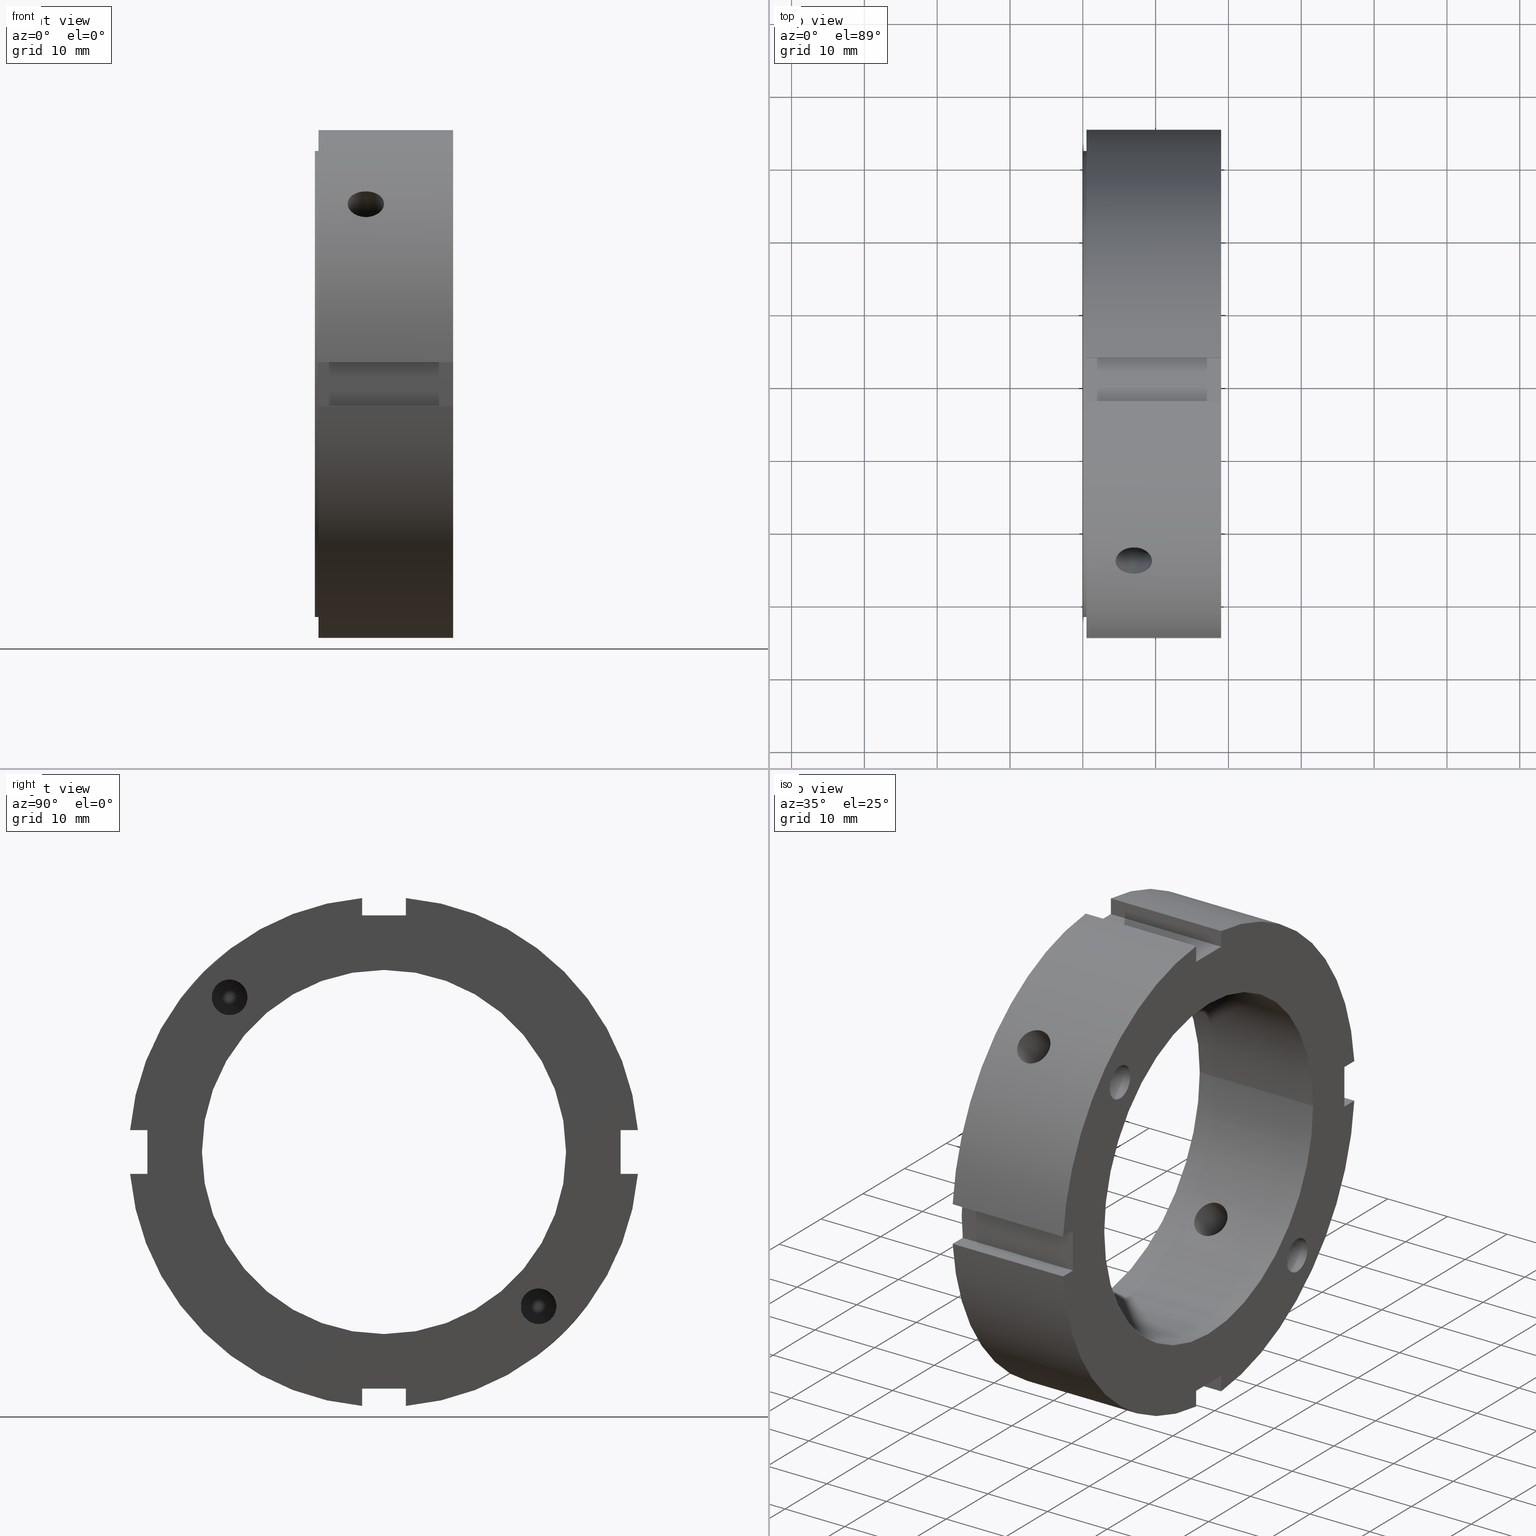
[diagram: canonical four-view strip — front | top / right | iso, engineering-drawing reading convention]
A machine part, canonical four-view strip (front | top / right | iso — engineering-drawing reading convention). The complete STEP part file that produces these views, byte-faithful:
ISO-10303-21;
HEADER;
/****************************************************************
 * Generated by software with PDElib inside                    *
 * PDElib Version v51a, created Wed 11/30/2011                  *
 * ITI Transcendata (http://www.transcendata.com/)              *
 ****************************************************************/
FILE_DESCRIPTION((''),'2;1');
FILE_NAME('C:\\Users\\sugidesign\\Documents\\Fukuda\\3Ddata\\ZMVtype\\FKD ZMV50.stp','2014-02-22T15:43:33',('sugidesign'),(''),'Autodesk Inventor LT ','Autodesk Inventor LT ','');
FILE_SCHEMA(('CONFIG_CONTROL_DESIGN'));
ENDSEC;
DATA;
#5=APPLICATION_CONTEXT('configuration controlled 3D designs of mechanical parts and assemblies');
#6=APPLICATION_PROTOCOL_DEFINITION('International Standard','ap203_configuration_controlled_3d_design_of_mechanical_parts_and_assemblies_mim_lf',2004,#5);
#7=PRODUCT_CONTEXT('',#5,'mechanical');
#8=PRODUCT('FKD ZMV50','FKD ZMV50',$,(#7));
#9=PRODUCT_RELATED_PRODUCT_CATEGORY('part',$,(#8));
#10=PRODUCT_DEFINITION_FORMATION('',$,#8);
#11=PRODUCT_DEFINITION_CONTEXT('part definition',#5,'design');
#12=PRODUCT_DEFINITION('',$,#10,#11);
#18=(NAMED_UNIT(*)PLANE_ANGLE_UNIT()SI_UNIT($,.RADIAN.));
#19=DIMENSIONAL_EXPONENTS(0.0,0.0,0.0,0.0,0.0,0.0,0.0);
#20=PLANE_ANGLE_MEASURE_WITH_UNIT(PLANE_ANGLE_MEASURE(0.0174532925),#18);
#24=(CONVERSION_BASED_UNIT('DEGREE',#20)NAMED_UNIT(#19)PLANE_ANGLE_UNIT());
#28=(NAMED_UNIT(*)SI_UNIT($,.STERADIAN.)SOLID_ANGLE_UNIT());
#32=(LENGTH_UNIT()NAMED_UNIT(*)SI_UNIT(.MILLI.,.METRE.));
#34=UNCERTAINTY_MEASURE_WITH_UNIT(LENGTH_MEASURE(0.01),#32,'DISTANCE_ACCURACY_VALUE','');
#36=(GEOMETRIC_REPRESENTATION_CONTEXT(3)GLOBAL_UNCERTAINTY_ASSIGNED_CONTEXT((#34))GLOBAL_UNIT_ASSIGNED_CONTEXT((#24,#28,#32))REPRESENTATION_CONTEXT('None','None'));
#37=AXIS2_PLACEMENT_3D('',#38,#39,#40);
#38=CARTESIAN_POINT('',(0.0,0.0,0.0));
#39=DIRECTION('',(0.0,0.0,1.0));
#40=DIRECTION('',(1.0,0.0,0.0));
#41=SHAPE_REPRESENTATION('',(#37),#36);
#42=PRODUCT_DEFINITION_SHAPE('','',#12);
#43=SHAPE_DEFINITION_REPRESENTATION(#42,#41);
#49=(NAMED_UNIT(*)PLANE_ANGLE_UNIT()SI_UNIT($,.RADIAN.));
#50=DIMENSIONAL_EXPONENTS(0.0,0.0,0.0,0.0,0.0,0.0,0.0);
#51=PLANE_ANGLE_MEASURE_WITH_UNIT(PLANE_ANGLE_MEASURE(0.0174532925),#49);
#55=(CONVERSION_BASED_UNIT('DEGREE',#51)NAMED_UNIT(#50)PLANE_ANGLE_UNIT());
#59=(NAMED_UNIT(*)SI_UNIT($,.STERADIAN.)SOLID_ANGLE_UNIT());
#63=(LENGTH_UNIT()NAMED_UNIT(*)SI_UNIT(.MILLI.,.METRE.));
#65=UNCERTAINTY_MEASURE_WITH_UNIT(LENGTH_MEASURE(0.000001),#63,'DISTANCE_ACCURACY_VALUE','');
#67=(GEOMETRIC_REPRESENTATION_CONTEXT(3)GLOBAL_UNCERTAINTY_ASSIGNED_CONTEXT((#65))GLOBAL_UNIT_ASSIGNED_CONTEXT((#55,#59,#63))REPRESENTATION_CONTEXT('','3D'));
#68=CARTESIAN_POINT('',(12.999999999999989,-21.213203435596419,21.213203435596434));
#69=DIRECTION('',(-1.0,0.0,0.0));
#70=DIRECTION('',(0.0,-1.0,0.0));
#71=AXIS2_PLACEMENT_3D('',#68,#69,#70);
#72=CYLINDRICAL_SURFACE('',#71,2.4585);
#73=CARTESIAN_POINT('',(18.999999999999989,-23.67170343559642,21.213203435596434));
#74=VERTEX_POINT('',#73);
#75=CARTESIAN_POINT('',(18.999999999999989,-21.213203435596419,21.213203435596434));
#76=DIRECTION('',(-1.0,0.0,0.0));
#77=DIRECTION('',(0.0,-1.0,0.0));
#78=AXIS2_PLACEMENT_3D('',#75,#76,#77);
#79=CIRCLE('',#78,2.4585);
#80=EDGE_CURVE('',#74,#74,#79,.T.);
#81=ORIENTED_EDGE('',*,*,#80,.F.);
#82=EDGE_LOOP('',(#81));
#83=FACE_OUTER_BOUND('',#82,.T.);
#84=CARTESIAN_POINT('',(7.45362732501464,-19.474781414049289,22.951625457143557));
#85=VERTEX_POINT('',#84);
#86=CARTESIAN_POINT('',(7.453627325014676,-19.474781414049289,22.951625457143557));
#87=CARTESIAN_POINT('',(7.453627325014675,-19.548281791984685,23.025125835078953));
#88=CARTESIAN_POINT('',(7.485845144440702,-19.610837036625924,23.079431589738082));
#89=CARTESIAN_POINT('',(7.564508256890265,-19.733180553379079,23.177871432418122));
#90=CARTESIAN_POINT('',(7.612937817032464,-19.792489264129308,23.221002769903851));
#91=CARTESIAN_POINT('',(7.772228880000029,-19.977509045399998,23.343747503521854));
#92=CARTESIAN_POINT('',(7.895505545516908,-20.107519828547499,23.414545669080823));
#93=CARTESIAN_POINT('',(8.283828024816529,-20.537152457931107,23.597330917980258));
#94=CARTESIAN_POINT('',(8.561851096446011,-20.870054196267226,23.671703435596431));
#95=CARTESIAN_POINT('',(8.987347846502065,-21.491946694246057,23.671703435596431));
#96=CARTESIAN_POINT('',(9.170926118717715,-21.807864604421788,23.621144407465469));
#97=CARTESIAN_POINT('',(9.363473477026185,-22.265711746251849,23.441059725573265));
#98=CARTESIAN_POINT('',(9.414345366287378,-22.415921810929436,23.364088263739372));
#99=CARTESIAN_POINT('',(9.482622830029023,-22.699179580383095,23.179090495411124));
#100=CARTESIAN_POINT('',(9.499999999999989,-22.832215401636834,23.07103551265028));
#101=CARTESIAN_POINT('',(9.499999999999991,-23.071035512650269,22.832215401636844));
#102=CARTESIAN_POINT('',(9.482622830029024,-23.179090495411106,22.699179580383113));
#103=CARTESIAN_POINT('',(9.414345366287385,-23.364088263739355,22.415921810929458));
#104=CARTESIAN_POINT('',(9.363473477026194,-23.441059725573254,22.265711746251867));
#105=CARTESIAN_POINT('',(9.170926118717732,-23.621144407465451,21.807864604421816));
#106=CARTESIAN_POINT('',(8.987347846502088,-23.671703435596424,21.491946694246092));
#107=CARTESIAN_POINT('',(8.561851096446054,-23.671703435596424,20.870054196267272));
#108=CARTESIAN_POINT('',(8.283828024816582,-23.597330917980255,20.537152457931146));
#109=CARTESIAN_POINT('',(7.895505545516977,-23.414545669080816,20.107519828547535));
#110=CARTESIAN_POINT('',(7.772228880000103,-23.343747503521854,19.977509045400033));
#111=CARTESIAN_POINT('',(7.612937817032548,-23.221002769903851,19.79248926412934));
#112=CARTESIAN_POINT('',(7.564508256890381,-23.177871432418115,19.7331805533791));
#113=CARTESIAN_POINT('',(7.485845144440827,-23.079431589738071,19.610837036625938));
#114=CARTESIAN_POINT('',(7.453627325014779,-23.025125835078942,19.548281791984707));
#115=CARTESIAN_POINT('',(7.453627325014774,-22.87812507920815,19.401281036113915));
#116=CARTESIAN_POINT('',(7.485845144440821,-22.815569834566926,19.346975281454796));
#117=CARTESIAN_POINT('',(7.564508256890364,-22.693226317813767,19.248535438774756));
#118=CARTESIAN_POINT('',(7.612937817032536,-22.633917607063534,19.20540410128902));
#119=CARTESIAN_POINT('',(7.772228880000084,-22.448897825792841,19.082659367671017));
#120=CARTESIAN_POINT('',(7.895505545516956,-22.318887042645329,19.011861202112041));
#121=CARTESIAN_POINT('',(8.283828024816556,-21.889254413261725,18.829075953212605));
#122=CARTESIAN_POINT('',(8.561851096446034,-21.556352674925613,18.754703435596436));
#123=CARTESIAN_POINT('',(8.987347846502074,-20.934460176946793,18.754703435596433));
#124=CARTESIAN_POINT('',(9.170926118717723,-20.618542266771058,18.805262463727395));
#125=CARTESIAN_POINT('',(9.36347347702619,-20.160695124941,18.985347145619595));
#126=CARTESIAN_POINT('',(9.414345366287385,-20.010485060263399,19.062318607453488));
#127=CARTESIAN_POINT('',(9.482622830029024,-19.72722729080974,19.247316375781736));
#128=CARTESIAN_POINT('',(9.499999999999991,-19.594191469556012,19.355371358542584));
#129=CARTESIAN_POINT('',(9.499999999999991,-19.355371358542577,19.594191469556019));
#130=CARTESIAN_POINT('',(9.482622830029024,-19.247316375781725,19.727227290809751));
#131=CARTESIAN_POINT('',(9.41434536628738,-19.062318607453477,20.010485060263413));
#132=CARTESIAN_POINT('',(9.363473477026185,-18.985347145619581,20.160695124941007));
#133=CARTESIAN_POINT('',(9.170926118717715,-18.805262463727384,20.618542266771062));
#134=CARTESIAN_POINT('',(8.987347846502065,-18.754703435596415,20.934460176946793));
#135=CARTESIAN_POINT('',(8.561851096446011,-18.754703435596415,21.556352674925616));
#136=CARTESIAN_POINT('',(8.283828024816526,-18.829075953212598,21.889254413261746));
#137=CARTESIAN_POINT('',(7.895505545516905,-19.011861202112033,22.318887042645351));
#138=CARTESIAN_POINT('',(7.772228880000029,-19.082659367671006,22.448897825792855));
#139=CARTESIAN_POINT('',(7.612937817032465,-19.205404101289002,22.633917607063545));
#140=CARTESIAN_POINT('',(7.564508256890285,-19.248535438774741,22.693226317813789));
#141=CARTESIAN_POINT('',(7.485845144440727,-19.346975281454782,22.815569834566944));
#142=CARTESIAN_POINT('',(7.453627325014684,-19.401281036113893,22.878125079208161));
#143=CARTESIAN_POINT('',(7.453627325014684,-19.474781414049289,22.951625457143557));
#144=B_SPLINE_CURVE_WITH_KNOTS('',3,(#86,#87,#88,#89,#90,#91,#92,#93,#94,#95,#96,#97,#98,#99,#100,#101,#102,#103,#104,#105,#106,#107,#108,#109,#110,#111,#112,#113,#114,#115,#116,#117,#118,#119,#120,#121,#122,#123,#124,#125,#126,#127,#128,#129,#130,#131,#132,#133,#134,#135,#136,#137,#138,#139,#140,#141,#142,#143),.UNSPECIFIED.,.T.,.U.,(4,2,2,2,2,2,2,2,2,2,2,2,2,2,2,2,2,2,2,2,2,2,2,2,2,2,2,2,4),(0.0,0.031183569394737,0.062367138789473,0.124734277578947,0.249468555157893,0.350791347146689,0.401452743141086,0.452114139135484,0.502775535129881,0.553436931124277,0.654759723113071,0.779494000692013,0.841861139481485,0.87304470887622,0.904228278270956,0.935411847665691,0.966595417060427,1.028962555849898,1.153696833428841,1.255019625417636,1.305681021412034,1.356342417406431,1.407003813400829,1.457665209395226,1.558988001384021,1.683722278962967,1.74608941775244,1.777272987147177,1.808456556541913),.UNSPECIFIED.);
#145=EDGE_CURVE('',#85,#85,#144,.T.);
#146=ORIENTED_EDGE('',*,*,#145,.F.);
#147=EDGE_LOOP('',(#146));
#148=FACE_BOUND('',#147,.T.);
#149=ADVANCED_FACE('',(#83,#148),#72,.F.);
#150=CARTESIAN_POINT('',(6.999999999999991,-71.024643610510282,71.02464361051031));
#151=DIRECTION('',(0.0,-0.707106781186547,0.707106781186548));
#152=DIRECTION('',(1.0,0.0,0.0));
#153=AXIS2_PLACEMENT_3D('',#150,#151,#152);
#154=CYLINDRICAL_SURFACE('',#153,2.5);
#155=CARTESIAN_POINT('',(6.999999999999991,-26.453289025630742,22.917755119698));
#156=VERTEX_POINT('',#155);
#157=CARTESIAN_POINT('',(6.999999999999992,-26.453289025630738,22.917755119698011));
#158=CARTESIAN_POINT('',(6.685979550826577,-26.453289025630738,22.917755119698011));
#159=CARTESIAN_POINT('',(6.351101312387696,-26.412201968584572,22.965450920460029));
#160=CARTESIAN_POINT('',(5.735184683418414,-26.243703939774605,23.157814065553552));
#161=CARTESIAN_POINT('',(5.454137198955172,-26.116124570931589,23.302304709737239));
#162=CARTESIAN_POINT('',(5.010329090823675,-25.818175393671751,23.631994978088102));
#163=CARTESIAN_POINT('',(4.817946388959292,-25.627890966716521,23.839171838510502));
#164=CARTESIAN_POINT('',(4.562778887486544,-25.204282946558848,24.28660187215856));
#165=CARTESIAN_POINT('',(4.499999999999991,-24.97078313473423,24.526691548324095));
#166=CARTESIAN_POINT('',(4.499999999999991,-24.526691548324095,24.970783134734233));
#167=CARTESIAN_POINT('',(4.562778887486539,-24.28660187215857,25.204282946558855));
#168=CARTESIAN_POINT('',(4.817946388959284,-23.839171838510502,25.627890966716524));
#169=CARTESIAN_POINT('',(5.010329090823675,-23.631994978088095,25.818175393671751));
#170=CARTESIAN_POINT('',(5.454137198955172,-23.302304709737236,26.116124570931593));
#171=CARTESIAN_POINT('',(5.735184683418416,-23.157814065553538,26.243703939774612));
#172=CARTESIAN_POINT('',(6.351101312387696,-22.965450920460022,26.412201968584583));
#173=CARTESIAN_POINT('',(6.685979550826576,-22.917755119698008,26.453289025630742));
#174=CARTESIAN_POINT('',(7.314020449173405,-22.917755119698008,26.453289025630742));
#175=CARTESIAN_POINT('',(7.648898687612285,-22.965450920460022,26.412201968584583));
#176=CARTESIAN_POINT('',(8.264815316581567,-23.157814065553538,26.243703939774612));
#177=CARTESIAN_POINT('',(8.545862801044811,-23.302304709737236,26.116124570931593));
#178=CARTESIAN_POINT('',(8.989670909176306,-23.631994978088095,25.818175393671751));
#179=CARTESIAN_POINT('',(9.182053611040693,-23.839171838510499,25.627890966716535));
#180=CARTESIAN_POINT('',(9.43722111251344,-24.28660187215856,25.204282946558859));
#181=CARTESIAN_POINT('',(9.499999999999991,-24.526691548324095,24.970783134734233));
#182=CARTESIAN_POINT('',(9.499999999999991,-24.970783134734226,24.526691548324095));
#183=CARTESIAN_POINT('',(9.437221112513438,-25.204282946558848,24.28660187215856));
#184=CARTESIAN_POINT('',(9.18205361104069,-25.627890966716521,23.839171838510502));
#185=CARTESIAN_POINT('',(8.989670909176306,-25.818175393671744,23.631994978088102));
#186=CARTESIAN_POINT('',(8.545862801044811,-26.116124570931589,23.302304709737239));
#187=CARTESIAN_POINT('',(8.264815316581567,-26.243703939774605,23.157814065553545));
#188=CARTESIAN_POINT('',(7.648898687612285,-26.412201968584572,22.965450920460029));
#189=CARTESIAN_POINT('',(7.314020449173406,-26.453289025630738,22.917755119698011));
#190=CARTESIAN_POINT('',(6.999999999999991,-26.453289025630738,22.917755119698011));
#191=B_SPLINE_CURVE_WITH_KNOTS('',3,(#157,#158,#159,#160,#161,#162,#163,#164,#165,#166,#167,#168,#169,#170,#171,#172,#173,#174,#175,#176,#177,#178,#179,#180,#181,#182,#183,#184,#185,#186,#187,#188,#189,#190),.UNSPECIFIED.,.T.,.U.,(4,2,2,2,2,2,2,2,2,2,2,2,2,2,2,2,4),(0.0,0.094206134752024,0.188412269504049,0.282618321169598,0.376824372835147,0.471030424500697,0.565236476166246,0.65944261091827,0.753648745670295,0.847854880422319,0.942061015174344,1.036267066839893,1.130473118505442,1.224679170170991,1.318885221836541,1.413091356588565,1.507297491340589),.UNSPECIFIED.);
#192=EDGE_CURVE('',#156,#156,#191,.T.);
#193=ORIENTED_EDGE('',*,*,#192,.F.);
#194=EDGE_LOOP('',(#193));
#195=FACE_OUTER_BOUND('',#194,.T.);
#196=ORIENTED_EDGE('',*,*,#145,.T.);
#197=EDGE_LOOP('',(#196));
#198=FACE_BOUND('',#197,.T.);
#199=CARTESIAN_POINT('',(6.999999999999991,-19.356826052304228,15.821292146371491));
#200=VERTEX_POINT('',#199);
#201=CARTESIAN_POINT('',(6.999999999999991,-19.356826052304225,15.821292146371498));
#202=CARTESIAN_POINT('',(7.314131518358572,-19.356826052304225,15.821292146371498));
#203=CARTESIAN_POINT('',(7.649057145595561,-19.317045281653897,15.870355491965265));
#204=CARTESIAN_POINT('',(8.264942876141339,-19.153334578612142,16.06755103627852));
#205=CARTESIAN_POINT('',(8.545920952312564,-19.029168650815485,16.215431027932663));
#206=CARTESIAN_POINT('',(8.989612198510145,-18.737671794442385,16.551408349438397));
#207=CARTESIAN_POINT('',(9.181978302160339,-18.550821169181116,16.761921198428496));
#208=CARTESIAN_POINT('',(9.437177996889441,-18.132006488581933,17.214102039008431));
#209=CARTESIAN_POINT('',(9.499999999999991,-17.899793300421422,17.455545758905956));
#210=CARTESIAN_POINT('',(9.499999999999991,-17.455545758905949,17.899793300421422));
#211=CARTESIAN_POINT('',(9.437177996889442,-17.214102039008424,18.132006488581936));
#212=CARTESIAN_POINT('',(9.181978302160342,-16.761921198428492,18.550821169181116));
#213=CARTESIAN_POINT('',(8.989612198510145,-16.551408349438397,18.737671794442388));
#214=CARTESIAN_POINT('',(8.545920952312567,-16.215431027932659,19.029168650815489));
#215=CARTESIAN_POINT('',(8.26494287614134,-16.067551036278513,19.153334578612149));
#216=CARTESIAN_POINT('',(7.649057145595563,-15.870355491965253,19.317045281653908));
#217=CARTESIAN_POINT('',(7.314131518358574,-15.821292146371492,19.356826052304228));
#218=CARTESIAN_POINT('',(6.685868481641409,-15.821292146371492,19.356826052304228));
#219=CARTESIAN_POINT('',(6.350942854404417,-15.870355491965253,19.317045281653908));
#220=CARTESIAN_POINT('',(5.73505712385864,-16.067551036278513,19.153334578612149));
#221=CARTESIAN_POINT('',(5.454079047687415,-16.215431027932659,19.029168650815489));
#222=CARTESIAN_POINT('',(5.010387801489836,-16.551408349438397,18.737671794442388));
#223=CARTESIAN_POINT('',(4.818021697839638,-16.761921198428492,18.55082116918112));
#224=CARTESIAN_POINT('',(4.562822003110538,-17.214102039008424,18.132006488581936));
#225=CARTESIAN_POINT('',(4.499999999999989,-17.455545758905949,17.899793300421422));
#226=CARTESIAN_POINT('',(4.499999999999992,-17.899793300421422,17.455545758905956));
#227=CARTESIAN_POINT('',(4.562822003110539,-18.132006488581933,17.214102039008431));
#228=CARTESIAN_POINT('',(4.818021697839641,-18.550821169181116,16.761921198428499));
#229=CARTESIAN_POINT('',(5.010387801489835,-18.737671794442385,16.551408349438397));
#230=CARTESIAN_POINT('',(5.454079047687416,-19.029168650815485,16.215431027932663));
#231=CARTESIAN_POINT('',(5.73505712385864,-19.153334578612142,16.067551036278516));
#232=CARTESIAN_POINT('',(6.350942854404419,-19.3170452816539,15.87035549196526));
#233=CARTESIAN_POINT('',(6.68586848164141,-19.356826052304225,15.821292146371498));
#234=CARTESIAN_POINT('',(6.999999999999991,-19.356826052304225,15.821292146371498));
#235=B_SPLINE_CURVE_WITH_KNOTS('',3,(#201,#202,#203,#204,#205,#206,#207,#208,#209,#210,#211,#212,#213,#214,#215,#216,#217,#218,#219,#220,#221,#222,#223,#224,#225,#226,#227,#228,#229,#230,#231,#232,#233,#234),.UNSPECIFIED.,.T.,.U.,(4,2,2,2,2,2,2,2,2,2,2,2,2,2,2,2,4),(0.0,0.094239455507574,0.188478911015149,0.282718045754461,0.376957180493773,0.471196315233085,0.565435449972397,0.659674905479972,0.753914360987546,0.848153816495121,0.942393272002695,1.036632406742007,1.13087154148132,1.225110676220632,1.319349810959944,1.413589266467518,1.507828721975093),.UNSPECIFIED.);
#236=EDGE_CURVE('',#200,#200,#235,.T.);
#237=ORIENTED_EDGE('',*,*,#236,.F.);
#238=EDGE_LOOP('',(#237));
#239=FACE_BOUND('',#238,.T.);
#240=ADVANCED_FACE('',(#195,#198,#239),#154,.F.);
#241=CARTESIAN_POINT('',(12.999999999999989,21.213203435596427,-21.213203435596423));
#242=DIRECTION('',(1.0,0.0,0.0));
#243=DIRECTION('',(0.0,0.0,-1.0));
#244=AXIS2_PLACEMENT_3D('',#241,#242,#243);
#245=CYLINDRICAL_SURFACE('',#244,2.4585);
#246=CARTESIAN_POINT('',(7.45362732501464,22.951625457143553,-19.474781414049293));
#247=VERTEX_POINT('',#246);
#248=CARTESIAN_POINT('',(7.45362732501464,22.951625457143553,-19.474781414049293));
#249=CARTESIAN_POINT('',(7.453627325014641,22.878125079208157,-19.401281036113897));
#250=CARTESIAN_POINT('',(7.485845144440727,22.81556983456694,-19.346975281454785));
#251=CARTESIAN_POINT('',(7.564508256890285,22.693226317813785,-19.248535438774745));
#252=CARTESIAN_POINT('',(7.612937817032465,22.633917607063538,-19.205404101289005));
#253=CARTESIAN_POINT('',(7.772228880000029,22.448897825792852,-19.08265936767101));
#254=CARTESIAN_POINT('',(7.895505545516905,22.318887042645347,-19.011861202112037));
#255=CARTESIAN_POINT('',(8.283828024816526,21.889254413261739,-18.829075953212602));
#256=CARTESIAN_POINT('',(8.561851096446011,21.556352674925613,-18.754703435596419));
#257=CARTESIAN_POINT('',(8.987347846502065,20.934460176946786,-18.754703435596419));
#258=CARTESIAN_POINT('',(9.170926118717715,20.618542266771058,-18.805262463727388));
#259=CARTESIAN_POINT('',(9.363473477026185,20.160695124941,-18.985347145619585));
#260=CARTESIAN_POINT('',(9.41434536628738,20.010485060263402,-19.062318607453481));
#261=CARTESIAN_POINT('',(9.482622830029023,19.727227290809747,-19.247316375781732));
#262=CARTESIAN_POINT('',(9.499999999999989,19.594191469556016,-19.355371358542577));
#263=CARTESIAN_POINT('',(9.499999999999991,19.35537135854258,-19.594191469556016));
#264=CARTESIAN_POINT('',(9.482622830029024,19.247316375781732,-19.727227290809747));
#265=CARTESIAN_POINT('',(9.414345366287385,19.062318607453484,-20.010485060263406));
#266=CARTESIAN_POINT('',(9.36347347702619,18.985347145619585,-20.160695124941004));
#267=CARTESIAN_POINT('',(9.170926118717723,18.805262463727392,-20.618542266771062));
#268=CARTESIAN_POINT('',(8.987347846502074,18.754703435596429,-20.934460176946796));
#269=CARTESIAN_POINT('',(8.561851096446034,18.754703435596433,-21.556352674925616));
#270=CARTESIAN_POINT('',(8.283828024816556,18.829075953212602,-21.889254413261728));
#271=CARTESIAN_POINT('',(7.895505545516959,19.011861202112041,-22.318887042645336));
#272=CARTESIAN_POINT('',(7.77222888000008,19.082659367670999,-22.448897825792834));
#273=CARTESIAN_POINT('',(7.612937817032536,19.205404101289002,-22.633917607063523));
#274=CARTESIAN_POINT('',(7.564508256890373,19.248535438774748,-22.693226317813775));
#275=CARTESIAN_POINT('',(7.485845144440825,19.346975281454792,-22.815569834566929));
#276=CARTESIAN_POINT('',(7.453627325014774,19.401281036113911,-22.878125079208154));
#277=CARTESIAN_POINT('',(7.453627325014779,19.548281791984703,-23.025125835078946));
#278=CARTESIAN_POINT('',(7.485845144440827,19.610837036625934,-23.079431589738078));
#279=CARTESIAN_POINT('',(7.564508256890381,19.733180553379096,-23.177871432418119));
#280=CARTESIAN_POINT('',(7.612937817032548,19.792489264129337,-23.221002769903855));
#281=CARTESIAN_POINT('',(7.772228880000103,19.97750904540003,-23.343747503521858));
#282=CARTESIAN_POINT('',(7.895505545516977,20.107519828547531,-23.41454566908082));
#283=CARTESIAN_POINT('',(8.283828024816582,20.537152457931143,-23.597330917980258));
#284=CARTESIAN_POINT('',(8.561851096446052,20.870054196267269,-23.671703435596427));
#285=CARTESIAN_POINT('',(8.987347846502088,21.491946694246089,-23.671703435596427));
#286=CARTESIAN_POINT('',(9.170926118717729,21.807864604421809,-23.621144407465454));
#287=CARTESIAN_POINT('',(9.363473477026192,22.265711746251856,-23.441059725573258));
#288=CARTESIAN_POINT('',(9.414345366287387,22.415921810929454,-23.364088263739362));
#289=CARTESIAN_POINT('',(9.482622830029024,22.69917958038311,-23.17909049541111));
#290=CARTESIAN_POINT('',(9.499999999999991,22.832215401636841,-23.07103551265028));
#291=CARTESIAN_POINT('',(9.499999999999989,23.07103551265028,-22.832215401636841));
#292=CARTESIAN_POINT('',(9.482622830029023,23.179090495411117,-22.699179580383102));
#293=CARTESIAN_POINT('',(9.414345366287378,23.364088263739369,-22.415921810929444));
#294=CARTESIAN_POINT('',(9.363473477026185,23.441059725573265,-22.265711746251853));
#295=CARTESIAN_POINT('',(9.170926118717713,23.621144407465465,-21.807864604421788));
#296=CARTESIAN_POINT('',(8.987347846502065,23.671703435596427,-21.49194669424606));
#297=CARTESIAN_POINT('',(8.561851096446011,23.671703435596427,-20.870054196267233));
#298=CARTESIAN_POINT('',(8.283828024816529,23.597330917980255,-20.537152457931111));
#299=CARTESIAN_POINT('',(7.895505545516908,23.41454566908082,-20.107519828547503));
#300=CARTESIAN_POINT('',(7.772228880000029,23.343747503521847,-19.977509045400005));
#301=CARTESIAN_POINT('',(7.612937817032464,23.221002769903848,-19.792489264129316));
#302=CARTESIAN_POINT('',(7.564508256890265,23.177871432418119,-19.733180553379086));
#303=CARTESIAN_POINT('',(7.485845144440702,23.079431589738078,-19.610837036625931));
#304=CARTESIAN_POINT('',(7.453627325014639,23.025125835078949,-19.548281791984689));
#305=CARTESIAN_POINT('',(7.45362732501464,22.951625457143553,-19.474781414049293));
#306=B_SPLINE_CURVE_WITH_KNOTS('',3,(#248,#249,#250,#251,#252,#253,#254,#255,#256,#257,#258,#259,#260,#261,#262,#263,#264,#265,#266,#267,#268,#269,#270,#271,#272,#273,#274,#275,#276,#277,#278,#279,#280,#281,#282,#283,#284,#285,#286,#287,#288,#289,#290,#291,#292,#293,#294,#295,#296,#297,#298,#299,#300,#301,#302,#303,#304,#305),.UNSPECIFIED.,.T.,.U.,(4,2,2,2,2,2,2,2,2,2,2,2,2,2,2,2,2,2,2,2,2,2,2,2,2,2,2,2,4),(0.0,0.031183569394737,0.062367138789473,0.124734277578946,0.249468555157892,0.350791347146687,0.401452743141085,0.452114139135482,0.50277553512988,0.553436931124277,0.654759723113072,0.779494000692015,0.841861139481486,0.873044708876222,0.904228278270957,0.935411847665693,0.966595417060429,1.0289625558499,1.153696833428842,1.255019625417636,1.305681021412033,1.356342417406429,1.407003813400827,1.457665209395225,1.55898800138402,1.683722278962966,1.74608941775244,1.777272987147176,1.808456556541913),.UNSPECIFIED.);
#307=EDGE_CURVE('',#247,#247,#306,.T.);
#308=ORIENTED_EDGE('',*,*,#307,.F.);
#309=EDGE_LOOP('',(#308));
#310=FACE_OUTER_BOUND('',#309,.T.);
#311=CARTESIAN_POINT('',(18.999999999999989,21.213203435596427,-23.671703435596424));
#312=VERTEX_POINT('',#311);
#313=CARTESIAN_POINT('',(18.999999999999989,21.213203435596427,-21.213203435596423));
#314=DIRECTION('',(-1.0,0.0,0.0));
#315=DIRECTION('',(0.0,0.0,-1.0));
#316=AXIS2_PLACEMENT_3D('',#313,#314,#315);
#317=CIRCLE('',#316,2.4585);
#318=EDGE_CURVE('',#312,#312,#317,.T.);
#319=ORIENTED_EDGE('',*,*,#318,.F.);
#320=EDGE_LOOP('',(#319));
#321=FACE_BOUND('',#320,.T.);
#322=ADVANCED_FACE('',(#310,#321),#245,.F.);
#323=CARTESIAN_POINT('',(6.999999999999991,71.024643610510282,-71.02464361051031));
#324=DIRECTION('',(0.0,-0.707106781186547,0.707106781186548));
#325=DIRECTION('',(1.0,0.0,0.0));
#326=AXIS2_PLACEMENT_3D('',#323,#324,#325);
#327=CYLINDRICAL_SURFACE('',#326,2.5);
#328=CARTESIAN_POINT('',(6.999999999999991,22.917755119697997,-26.453289025630745));
#329=VERTEX_POINT('',#328);
#330=CARTESIAN_POINT('',(6.999999999999989,22.917755119697997,-26.453289025630745));
#331=CARTESIAN_POINT('',(7.314020449173404,22.917755119697997,-26.453289025630745));
#332=CARTESIAN_POINT('',(7.648898687612285,22.965450920460022,-26.412201968584583));
#333=CARTESIAN_POINT('',(8.264815316581567,23.157814065553538,-26.243703939774612));
#334=CARTESIAN_POINT('',(8.545862801044811,23.302304709737236,-26.116124570931593));
#335=CARTESIAN_POINT('',(8.989670909176306,23.631994978088095,-25.818175393671751));
#336=CARTESIAN_POINT('',(9.182053611040693,23.839171838510499,-25.627890966716535));
#337=CARTESIAN_POINT('',(9.43722111251344,24.28660187215856,-25.204282946558859));
#338=CARTESIAN_POINT('',(9.499999999999991,24.526691548324095,-24.970783134734233));
#339=CARTESIAN_POINT('',(9.499999999999991,24.970783134734226,-24.526691548324095));
#340=CARTESIAN_POINT('',(9.437221112513438,25.204282946558848,-24.28660187215856));
#341=CARTESIAN_POINT('',(9.18205361104069,25.627890966716521,-23.839171838510502));
#342=CARTESIAN_POINT('',(8.989670909176306,25.818175393671744,-23.631994978088102));
#343=CARTESIAN_POINT('',(8.545862801044811,26.116124570931589,-23.302304709737239));
#344=CARTESIAN_POINT('',(8.264815316581567,26.243703939774605,-23.157814065553552));
#345=CARTESIAN_POINT('',(7.648898687612285,26.412201968584572,-22.965450920460029));
#346=CARTESIAN_POINT('',(7.314020449173405,26.453289025630738,-22.917755119698011));
#347=CARTESIAN_POINT('',(6.685979550826576,26.453289025630738,-22.917755119698011));
#348=CARTESIAN_POINT('',(6.351101312387696,26.412201968584572,-22.965450920460029));
#349=CARTESIAN_POINT('',(5.735184683418414,26.243703939774605,-23.157814065553552));
#350=CARTESIAN_POINT('',(5.454137198955172,26.116124570931589,-23.302304709737239));
#351=CARTESIAN_POINT('',(5.010329090823675,25.818175393671751,-23.631994978088102));
#352=CARTESIAN_POINT('',(4.817946388959292,25.627890966716521,-23.839171838510502));
#353=CARTESIAN_POINT('',(4.562778887486544,25.204282946558848,-24.28660187215856));
#354=CARTESIAN_POINT('',(4.499999999999991,24.97078313473423,-24.526691548324095));
#355=CARTESIAN_POINT('',(4.499999999999991,24.526691548324095,-24.970783134734233));
#356=CARTESIAN_POINT('',(4.562778887486542,24.28660187215856,-25.204282946558862));
#357=CARTESIAN_POINT('',(4.817946388959289,23.839171838510499,-25.627890966716535));
#358=CARTESIAN_POINT('',(5.010329090823675,23.631994978088095,-25.818175393671751));
#359=CARTESIAN_POINT('',(5.454137198955172,23.302304709737236,-26.116124570931593));
#360=CARTESIAN_POINT('',(5.735184683418416,23.157814065553538,-26.243703939774612));
#361=CARTESIAN_POINT('',(6.351101312387696,22.965450920460022,-26.412201968584583));
#362=CARTESIAN_POINT('',(6.685979550826576,22.917755119697997,-26.453289025630745));
#363=CARTESIAN_POINT('',(6.999999999999991,22.917755119697997,-26.453289025630745));
#364=B_SPLINE_CURVE_WITH_KNOTS('',3,(#330,#331,#332,#333,#334,#335,#336,#337,#338,#339,#340,#341,#342,#343,#344,#345,#346,#347,#348,#349,#350,#351,#352,#353,#354,#355,#356,#357,#358,#359,#360,#361,#362,#363),.UNSPECIFIED.,.T.,.U.,(4,2,2,2,2,2,2,2,2,2,2,2,2,2,2,2,4),(0.0,0.094206134752024,0.188412269504049,0.282618321169598,0.376824372835147,0.471030424500697,0.565236476166246,0.65944261091827,0.753648745670295,0.847854880422319,0.942061015174344,1.036267066839893,1.130473118505442,1.224679170170992,1.318885221836541,1.413091356588565,1.50729749134059),.UNSPECIFIED.);
#365=EDGE_CURVE('',#329,#329,#364,.T.);
#366=ORIENTED_EDGE('',*,*,#365,.F.);
#367=EDGE_LOOP('',(#366));
#368=FACE_OUTER_BOUND('',#367,.T.);
#369=ORIENTED_EDGE('',*,*,#307,.T.);
#370=EDGE_LOOP('',(#369));
#371=FACE_BOUND('',#370,.T.);
#372=CARTESIAN_POINT('',(6.999999999999991,15.821292146371487,-19.356826052304232));
#373=VERTEX_POINT('',#372);
#374=CARTESIAN_POINT('',(6.999999999999989,15.821292146371489,-19.356826052304232));
#375=CARTESIAN_POINT('',(6.685868481641407,15.821292146371489,-19.356826052304232));
#376=CARTESIAN_POINT('',(6.350942854404417,15.870355491965253,-19.317045281653908));
#377=CARTESIAN_POINT('',(5.73505712385864,16.067551036278513,-19.153334578612149));
#378=CARTESIAN_POINT('',(5.454079047687415,16.215431027932659,-19.029168650815489));
#379=CARTESIAN_POINT('',(5.010387801489836,16.551408349438397,-18.737671794442385));
#380=CARTESIAN_POINT('',(4.818021697839637,16.761921198428496,-18.550821169181116));
#381=CARTESIAN_POINT('',(4.562822003110537,17.214102039008424,-18.132006488581933));
#382=CARTESIAN_POINT('',(4.499999999999989,17.455545758905949,-17.899793300421422));
#383=CARTESIAN_POINT('',(4.499999999999992,17.899793300421422,-17.455545758905956));
#384=CARTESIAN_POINT('',(4.562822003110539,18.132006488581933,-17.214102039008431));
#385=CARTESIAN_POINT('',(4.818021697839642,18.550821169181116,-16.761921198428496));
#386=CARTESIAN_POINT('',(5.010387801489835,18.737671794442385,-16.551408349438397));
#387=CARTESIAN_POINT('',(5.454079047687416,19.029168650815485,-16.215431027932663));
#388=CARTESIAN_POINT('',(5.735057123858642,19.153334578612139,-16.06755103627852));
#389=CARTESIAN_POINT('',(6.35094285440442,19.317045281653897,-15.870355491965265));
#390=CARTESIAN_POINT('',(6.68586848164141,19.356826052304225,-15.821292146371498));
#391=CARTESIAN_POINT('',(7.314131518358574,19.356826052304225,-15.821292146371498));
#392=CARTESIAN_POINT('',(7.649057145595561,19.317045281653897,-15.870355491965265));
#393=CARTESIAN_POINT('',(8.264942876141339,19.153334578612142,-16.06755103627852));
#394=CARTESIAN_POINT('',(8.545920952312564,19.029168650815485,-16.215431027932663));
#395=CARTESIAN_POINT('',(8.989612198510145,18.737671794442385,-16.551408349438397));
#396=CARTESIAN_POINT('',(9.181978302160339,18.550821169181116,-16.761921198428496));
#397=CARTESIAN_POINT('',(9.437177996889441,18.132006488581933,-17.214102039008431));
#398=CARTESIAN_POINT('',(9.499999999999991,17.899793300421422,-17.455545758905956));
#399=CARTESIAN_POINT('',(9.499999999999991,17.455545758905949,-17.899793300421422));
#400=CARTESIAN_POINT('',(9.437177996889442,17.214102039008424,-18.132006488581936));
#401=CARTESIAN_POINT('',(9.181978302160346,16.761921198428492,-18.550821169181116));
#402=CARTESIAN_POINT('',(8.989612198510146,16.551408349438397,-18.737671794442388));
#403=CARTESIAN_POINT('',(8.545920952312567,16.215431027932659,-19.029168650815489));
#404=CARTESIAN_POINT('',(8.264942876141342,16.067551036278516,-19.153334578612149));
#405=CARTESIAN_POINT('',(7.649057145595565,15.870355491965256,-19.317045281653908));
#406=CARTESIAN_POINT('',(7.314131518358574,15.821292146371489,-19.356826052304232));
#407=CARTESIAN_POINT('',(6.999999999999991,15.821292146371489,-19.356826052304232));
#408=B_SPLINE_CURVE_WITH_KNOTS('',3,(#374,#375,#376,#377,#378,#379,#380,#381,#382,#383,#384,#385,#386,#387,#388,#389,#390,#391,#392,#393,#394,#395,#396,#397,#398,#399,#400,#401,#402,#403,#404,#405,#406,#407),.UNSPECIFIED.,.T.,.U.,(4,2,2,2,2,2,2,2,2,2,2,2,2,2,2,2,4),(0.0,0.094239455507575,0.188478911015149,0.282718045754461,0.376957180493773,0.471196315233085,0.565435449972398,0.659674905479972,0.753914360987546,0.848153816495121,0.942393272002695,1.036632406742007,1.130871541481319,1.225110676220631,1.319349810959944,1.413589266467518,1.507828721975093),.UNSPECIFIED.);
#409=EDGE_CURVE('',#373,#373,#408,.T.);
#410=ORIENTED_EDGE('',*,*,#409,.F.);
#411=EDGE_LOOP('',(#410));
#412=FACE_BOUND('',#411,.T.);
#413=ADVANCED_FACE('',(#368,#371,#412),#327,.F.);
#414=CARTESIAN_POINT('',(18.999999999999989,-3.000000000000004,-32.5));
#415=DIRECTION('',(0.0,-1.0,0.0));
#416=DIRECTION('',(-1.0,0.0,0.0));
#417=AXIS2_PLACEMENT_3D('',#414,#415,#416);
#418=PLANE('',#417);
#419=CARTESIAN_POINT('',(0.499999999999994,-3.000000000000004,-32.5));
#420=VERTEX_POINT('',#419);
#421=CARTESIAN_POINT('',(0.499999999999994,-3.000000000000006,-34.871191548325385));
#422=VERTEX_POINT('',#421);
#423=CARTESIAN_POINT('',(0.499999999999994,-3.000000000000003,-32.5));
#424=DIRECTION('',(0.0,0.0,-1.0));
#425=VECTOR('',#424,2.371191548325385);
#426=LINE('',#423,#425);
#427=EDGE_CURVE('',#420,#422,#426,.T.);
#428=ORIENTED_EDGE('',*,*,#427,.F.);
#429=CARTESIAN_POINT('',(18.999999999999989,-3.000000000000004,-32.5));
#430=VERTEX_POINT('',#429);
#431=CARTESIAN_POINT('',(18.999999999999989,-3.000000000000004,-32.5));
#432=DIRECTION('',(-1.0,0.0,0.0));
#433=VECTOR('',#432,18.499999999999996);
#434=LINE('',#431,#433);
#435=EDGE_CURVE('',#430,#420,#434,.T.);
#436=ORIENTED_EDGE('',*,*,#435,.F.);
#437=CARTESIAN_POINT('',(18.999999999999989,-3.000000000000005,-34.871191548325385));
#438=VERTEX_POINT('',#437);
#439=CARTESIAN_POINT('',(18.999999999999989,-3.000000000000004,-34.871191548325385));
#440=DIRECTION('',(0.0,0.0,1.0));
#441=VECTOR('',#440,2.371191548325385);
#442=LINE('',#439,#441);
#443=EDGE_CURVE('',#438,#430,#442,.T.);
#444=ORIENTED_EDGE('',*,*,#443,.F.);
#445=CARTESIAN_POINT('',(0.499999999999995,-3.000000000000005,-34.871191548325385));
#446=DIRECTION('',(1.0,0.0,0.0));
#447=VECTOR('',#446,18.5);
#448=LINE('',#445,#447);
#449=EDGE_CURVE('',#422,#438,#448,.T.);
#450=ORIENTED_EDGE('',*,*,#449,.F.);
#451=EDGE_LOOP('',(#428,#436,#444,#450));
#452=FACE_OUTER_BOUND('',#451,.T.);
#453=ADVANCED_FACE('',(#452),#418,.F.);
#454=CARTESIAN_POINT('',(18.999999999999989,2.999999999999992,-35.0));
#455=DIRECTION('',(0.0,1.0,0.0));
#456=DIRECTION('',(1.0,0.0,0.0));
#457=AXIS2_PLACEMENT_3D('',#454,#455,#456);
#458=PLANE('',#457);
#459=CARTESIAN_POINT('',(0.499999999999994,2.999999999999992,-34.871191548325385));
#460=VERTEX_POINT('',#459);
#461=CARTESIAN_POINT('',(0.499999999999994,2.999999999999992,-32.5));
#462=VERTEX_POINT('',#461);
#463=CARTESIAN_POINT('',(0.499999999999994,2.999999999999995,-34.871191548325385));
#464=DIRECTION('',(0.0,0.0,1.0));
#465=VECTOR('',#464,2.371191548325385);
#466=LINE('',#463,#465);
#467=EDGE_CURVE('',#460,#462,#466,.T.);
#468=ORIENTED_EDGE('',*,*,#467,.F.);
#469=CARTESIAN_POINT('',(18.999999999999989,2.999999999999993,-34.871191548325385));
#470=VERTEX_POINT('',#469);
#471=CARTESIAN_POINT('',(18.999999999999993,2.999999999999992,-34.871191548325385));
#472=DIRECTION('',(-1.0,0.0,0.0));
#473=VECTOR('',#472,18.5);
#474=LINE('',#471,#473);
#475=EDGE_CURVE('',#470,#460,#474,.T.);
#476=ORIENTED_EDGE('',*,*,#475,.F.);
#477=CARTESIAN_POINT('',(18.999999999999989,2.999999999999992,-32.5));
#478=VERTEX_POINT('',#477);
#479=CARTESIAN_POINT('',(18.999999999999989,2.999999999999994,-32.5));
#480=DIRECTION('',(0.0,0.0,-1.0));
#481=VECTOR('',#480,2.371191548325385);
#482=LINE('',#479,#481);
#483=EDGE_CURVE('',#478,#470,#482,.T.);
#484=ORIENTED_EDGE('',*,*,#483,.F.);
#485=CARTESIAN_POINT('',(18.999999999999989,2.999999999999992,-32.5));
#486=DIRECTION('',(-1.0,0.0,0.0));
#487=VECTOR('',#486,18.499999999999996);
#488=LINE('',#485,#487);
#489=EDGE_CURVE('',#478,#462,#488,.T.);
#490=ORIENTED_EDGE('',*,*,#489,.T.);
#491=EDGE_LOOP('',(#468,#476,#484,#490));
#492=FACE_OUTER_BOUND('',#491,.T.);
#493=ADVANCED_FACE('',(#492),#458,.F.);
#494=CARTESIAN_POINT('',(18.999999999999989,2.999999999999992,-32.5));
#495=DIRECTION('',(0.0,0.0,1.0));
#496=DIRECTION('',(0.0,-1.0,0.0));
#497=AXIS2_PLACEMENT_3D('',#494,#495,#496);
#498=PLANE('',#497);
#499=CARTESIAN_POINT('',(0.499999999999994,2.999999999999991,-32.5));
#500=DIRECTION('',(0.0,-1.0,0.0));
#501=VECTOR('',#500,5.999999999999995);
#502=LINE('',#499,#501);
#503=EDGE_CURVE('',#462,#420,#502,.T.);
#504=ORIENTED_EDGE('',*,*,#503,.F.);
#505=ORIENTED_EDGE('',*,*,#489,.F.);
#506=CARTESIAN_POINT('',(18.999999999999989,-3.000000000000007,-32.499999999999993));
#507=DIRECTION('',(0.0,1.0,0.0));
#508=VECTOR('',#507,5.999999999999996);
#509=LINE('',#506,#508);
#510=EDGE_CURVE('',#430,#478,#509,.T.);
#511=ORIENTED_EDGE('',*,*,#510,.F.);
#512=ORIENTED_EDGE('',*,*,#435,.T.);
#513=EDGE_LOOP('',(#504,#505,#511,#512));
#514=FACE_OUTER_BOUND('',#513,.T.);
#515=ADVANCED_FACE('',(#514),#498,.F.);
#516=CARTESIAN_POINT('',(18.999999999999989,-32.5,3.000000000000003));
#517=DIRECTION('',(0.0,0.0,1.0));
#518=DIRECTION('',(-1.0,0.0,0.0));
#519=AXIS2_PLACEMENT_3D('',#516,#517,#518);
#520=PLANE('',#519);
#521=CARTESIAN_POINT('',(0.499999999999994,-32.5,3.000000000000003));
#522=VERTEX_POINT('',#521);
#523=CARTESIAN_POINT('',(0.499999999999994,-34.871191548325385,3.000000000000004));
#524=VERTEX_POINT('',#523);
#525=CARTESIAN_POINT('',(0.499999999999994,-32.5,3.000000000000003));
#526=DIRECTION('',(0.0,-1.0,0.0));
#527=VECTOR('',#526,2.371191548325378);
#528=LINE('',#525,#527);
#529=EDGE_CURVE('',#522,#524,#528,.T.);
#530=ORIENTED_EDGE('',*,*,#529,.F.);
#531=CARTESIAN_POINT('',(18.999999999999989,-32.5,3.000000000000003));
#532=VERTEX_POINT('',#531);
#533=CARTESIAN_POINT('',(18.999999999999989,-32.5,3.000000000000003));
#534=DIRECTION('',(-1.0,0.0,0.0));
#535=VECTOR('',#534,18.499999999999996);
#536=LINE('',#533,#535);
#537=EDGE_CURVE('',#532,#522,#536,.T.);
#538=ORIENTED_EDGE('',*,*,#537,.F.);
#539=CARTESIAN_POINT('',(18.999999999999989,-34.871191548325385,3.000000000000003));
#540=VERTEX_POINT('',#539);
#541=CARTESIAN_POINT('',(18.999999999999989,-34.871191548325385,3.000000000000003));
#542=DIRECTION('',(0.0,1.0,0.0));
#543=VECTOR('',#542,2.371191548325385);
#544=LINE('',#541,#543);
#545=EDGE_CURVE('',#540,#532,#544,.T.);
#546=ORIENTED_EDGE('',*,*,#545,.F.);
#547=CARTESIAN_POINT('',(0.499999999999995,-34.871191548325385,3.000000000000004));
#548=DIRECTION('',(1.0,0.0,0.0));
#549=VECTOR('',#548,18.5);
#550=LINE('',#547,#549);
#551=EDGE_CURVE('',#524,#540,#550,.T.);
#552=ORIENTED_EDGE('',*,*,#551,.F.);
#553=EDGE_LOOP('',(#530,#538,#546,#552));
#554=FACE_OUTER_BOUND('',#553,.T.);
#555=ADVANCED_FACE('',(#554),#520,.F.);
#556=CARTESIAN_POINT('',(18.999999999999989,-35.0,-2.999999999999994));
#557=DIRECTION('',(0.0,0.0,-1.0));
#558=DIRECTION('',(1.0,0.0,0.0));
#559=AXIS2_PLACEMENT_3D('',#556,#557,#558);
#560=PLANE('',#559);
#561=CARTESIAN_POINT('',(0.499999999999994,-34.871191548325385,-2.999999999999994));
#562=VERTEX_POINT('',#561);
#563=CARTESIAN_POINT('',(0.499999999999994,-32.5,-2.999999999999994));
#564=VERTEX_POINT('',#563);
#565=CARTESIAN_POINT('',(0.499999999999994,-34.871191548325378,-2.999999999999995));
#566=DIRECTION('',(0.0,1.0,0.0));
#567=VECTOR('',#566,2.371191548325378);
#568=LINE('',#565,#567);
#569=EDGE_CURVE('',#562,#564,#568,.T.);
#570=ORIENTED_EDGE('',*,*,#569,.F.);
#571=CARTESIAN_POINT('',(18.999999999999989,-34.871191548325385,-2.999999999999995));
#572=VERTEX_POINT('',#571);
#573=CARTESIAN_POINT('',(18.999999999999993,-34.871191548325385,-2.999999999999994));
#574=DIRECTION('',(-1.0,0.0,0.0));
#575=VECTOR('',#574,18.5);
#576=LINE('',#573,#575);
#577=EDGE_CURVE('',#572,#562,#576,.T.);
#578=ORIENTED_EDGE('',*,*,#577,.F.);
#579=CARTESIAN_POINT('',(18.999999999999989,-32.5,-2.999999999999994));
#580=VERTEX_POINT('',#579);
#581=CARTESIAN_POINT('',(18.999999999999989,-32.5,-2.999999999999994));
#582=DIRECTION('',(0.0,-1.0,0.0));
#583=VECTOR('',#582,2.371191548325385);
#584=LINE('',#581,#583);
#585=EDGE_CURVE('',#580,#572,#584,.T.);
#586=ORIENTED_EDGE('',*,*,#585,.F.);
#587=CARTESIAN_POINT('',(18.999999999999989,-32.5,-2.999999999999994));
#588=DIRECTION('',(-1.0,0.0,0.0));
#589=VECTOR('',#588,18.499999999999996);
#590=LINE('',#587,#589);
#591=EDGE_CURVE('',#580,#564,#590,.T.);
#592=ORIENTED_EDGE('',*,*,#591,.T.);
#593=EDGE_LOOP('',(#570,#578,#586,#592));
#594=FACE_OUTER_BOUND('',#593,.T.);
#595=ADVANCED_FACE('',(#594),#560,.F.);
#596=CARTESIAN_POINT('',(18.999999999999989,-32.5,-2.999999999999994));
#597=DIRECTION('',(0.0,1.0,0.0));
#598=DIRECTION('',(0.0,0.0,1.0));
#599=AXIS2_PLACEMENT_3D('',#596,#597,#598);
#600=PLANE('',#599);
#601=CARTESIAN_POINT('',(0.499999999999994,-32.5,-2.999999999999994));
#602=DIRECTION('',(0.0,0.0,1.0));
#603=VECTOR('',#602,5.999999999999996);
#604=LINE('',#601,#603);
#605=EDGE_CURVE('',#564,#522,#604,.T.);
#606=ORIENTED_EDGE('',*,*,#605,.F.);
#607=ORIENTED_EDGE('',*,*,#591,.F.);
#608=CARTESIAN_POINT('',(18.999999999999989,-32.5,3.000000000000003));
#609=DIRECTION('',(0.0,0.0,-1.0));
#610=VECTOR('',#609,5.999999999999996);
#611=LINE('',#608,#610);
#612=EDGE_CURVE('',#532,#580,#611,.T.);
#613=ORIENTED_EDGE('',*,*,#612,.F.);
#614=ORIENTED_EDGE('',*,*,#537,.T.);
#615=EDGE_LOOP('',(#606,#607,#613,#614));
#616=FACE_OUTER_BOUND('',#615,.T.);
#617=ADVANCED_FACE('',(#616),#600,.F.);
#618=CARTESIAN_POINT('',(18.999999999999989,3.0,32.5));
#619=DIRECTION('',(0.0,1.0,0.0));
#620=DIRECTION('',(-1.0,0.0,0.0));
#621=AXIS2_PLACEMENT_3D('',#618,#619,#620);
#622=PLANE('',#621);
#623=CARTESIAN_POINT('',(0.499999999999994,3.0,32.5));
#624=VERTEX_POINT('',#623);
#625=CARTESIAN_POINT('',(0.499999999999994,3.000000000000002,34.871191548325385));
#626=VERTEX_POINT('',#625);
#627=CARTESIAN_POINT('',(0.499999999999994,2.999999999999998,32.5));
#628=DIRECTION('',(0.0,0.0,1.0));
#629=VECTOR('',#628,2.371191548325385);
#630=LINE('',#627,#629);
#631=EDGE_CURVE('',#624,#626,#630,.T.);
#632=ORIENTED_EDGE('',*,*,#631,.F.);
#633=CARTESIAN_POINT('',(18.999999999999989,3.0,32.5));
#634=VERTEX_POINT('',#633);
#635=CARTESIAN_POINT('',(18.999999999999989,3.0,32.5));
#636=DIRECTION('',(-1.0,0.0,0.0));
#637=VECTOR('',#636,18.499999999999996);
#638=LINE('',#635,#637);
#639=EDGE_CURVE('',#634,#624,#638,.T.);
#640=ORIENTED_EDGE('',*,*,#639,.F.);
#641=CARTESIAN_POINT('',(18.999999999999989,3.000000000000001,34.871191548325385));
#642=VERTEX_POINT('',#641);
#643=CARTESIAN_POINT('',(18.999999999999989,2.999999999999999,34.871191548325385));
#644=DIRECTION('',(0.0,0.0,-1.0));
#645=VECTOR('',#644,2.371191548325385);
#646=LINE('',#643,#645);
#647=EDGE_CURVE('',#642,#634,#646,.T.);
#648=ORIENTED_EDGE('',*,*,#647,.F.);
#649=CARTESIAN_POINT('',(0.499999999999995,3.000000000000002,34.871191548325385));
#650=DIRECTION('',(1.0,0.0,0.0));
#651=VECTOR('',#650,18.5);
#652=LINE('',#649,#651);
#653=EDGE_CURVE('',#626,#642,#652,.T.);
#654=ORIENTED_EDGE('',*,*,#653,.F.);
#655=EDGE_LOOP('',(#632,#640,#648,#654));
#656=FACE_OUTER_BOUND('',#655,.T.);
#657=ADVANCED_FACE('',(#656),#622,.F.);
#658=CARTESIAN_POINT('',(18.999999999999989,-2.999999999999996,35.0));
#659=DIRECTION('',(0.0,-1.0,0.0));
#660=DIRECTION('',(1.0,0.0,0.0));
#661=AXIS2_PLACEMENT_3D('',#658,#659,#660);
#662=PLANE('',#661);
#663=CARTESIAN_POINT('',(0.499999999999994,-2.999999999999996,34.871191548325385));
#664=VERTEX_POINT('',#663);
#665=CARTESIAN_POINT('',(0.499999999999994,-2.999999999999996,32.5));
#666=VERTEX_POINT('',#665);
#667=CARTESIAN_POINT('',(0.499999999999994,-2.999999999999999,34.871191548325385));
#668=DIRECTION('',(0.0,0.0,-1.0));
#669=VECTOR('',#668,2.371191548325385);
#670=LINE('',#667,#669);
#671=EDGE_CURVE('',#664,#666,#670,.T.);
#672=ORIENTED_EDGE('',*,*,#671,.F.);
#673=CARTESIAN_POINT('',(18.999999999999989,-2.999999999999997,34.871191548325385));
#674=VERTEX_POINT('',#673);
#675=CARTESIAN_POINT('',(18.999999999999993,-2.999999999999996,34.871191548325385));
#676=DIRECTION('',(-1.0,0.0,0.0));
#677=VECTOR('',#676,18.5);
#678=LINE('',#675,#677);
#679=EDGE_CURVE('',#674,#664,#678,.T.);
#680=ORIENTED_EDGE('',*,*,#679,.F.);
#681=CARTESIAN_POINT('',(18.999999999999989,-2.999999999999996,32.5));
#682=VERTEX_POINT('',#681);
#683=CARTESIAN_POINT('',(18.999999999999989,-2.999999999999998,32.5));
#684=DIRECTION('',(0.0,0.0,1.0));
#685=VECTOR('',#684,2.371191548325385);
#686=LINE('',#683,#685);
#687=EDGE_CURVE('',#682,#674,#686,.T.);
#688=ORIENTED_EDGE('',*,*,#687,.F.);
#689=CARTESIAN_POINT('',(18.999999999999989,-2.999999999999996,32.5));
#690=DIRECTION('',(-1.0,0.0,0.0));
#691=VECTOR('',#690,18.499999999999996);
#692=LINE('',#689,#691);
#693=EDGE_CURVE('',#682,#666,#692,.T.);
#694=ORIENTED_EDGE('',*,*,#693,.T.);
#695=EDGE_LOOP('',(#672,#680,#688,#694));
#696=FACE_OUTER_BOUND('',#695,.T.);
#697=ADVANCED_FACE('',(#696),#662,.F.);
#698=CARTESIAN_POINT('',(18.999999999999989,-2.999999999999996,32.5));
#699=DIRECTION('',(0.0,0.0,-1.0));
#700=DIRECTION('',(0.0,1.0,0.0));
#701=AXIS2_PLACEMENT_3D('',#698,#699,#700);
#702=PLANE('',#701);
#703=CARTESIAN_POINT('',(0.499999999999994,-2.999999999999996,32.5));
#704=DIRECTION('',(0.0,1.0,0.0));
#705=VECTOR('',#704,5.999999999999998);
#706=LINE('',#703,#705);
#707=EDGE_CURVE('',#666,#624,#706,.T.);
#708=ORIENTED_EDGE('',*,*,#707,.F.);
#709=ORIENTED_EDGE('',*,*,#693,.F.);
#710=CARTESIAN_POINT('',(18.999999999999989,3.0,32.5));
#711=DIRECTION('',(0.0,-1.0,0.0));
#712=VECTOR('',#711,5.999999999999996);
#713=LINE('',#710,#712);
#714=EDGE_CURVE('',#634,#682,#713,.T.);
#715=ORIENTED_EDGE('',*,*,#714,.F.);
#716=ORIENTED_EDGE('',*,*,#639,.T.);
#717=EDGE_LOOP('',(#708,#709,#715,#716));
#718=FACE_OUTER_BOUND('',#717,.T.);
#719=ADVANCED_FACE('',(#718),#702,.F.);
#720=CARTESIAN_POINT('',(9.749999999999993,0.0,0.0));
#721=DIRECTION('',(1.0,0.0,0.0));
#722=DIRECTION('',(0.0,1.0,0.0));
#723=AXIS2_PLACEMENT_3D('',#720,#721,#722);
#724=CYLINDRICAL_SURFACE('',#723,35.0);
#725=ORIENTED_EDGE('',*,*,#653,.T.);
#726=CARTESIAN_POINT('',(18.999999999999989,34.871191548325385,2.999999999999999));
#727=VERTEX_POINT('',#726);
#728=CARTESIAN_POINT('',(18.999999999999989,0.0,0.0));
#729=DIRECTION('',(1.0,0.0,0.0));
#730=DIRECTION('',(0.0,1.0,0.0));
#731=AXIS2_PLACEMENT_3D('',#728,#729,#730);
#732=CIRCLE('',#731,35.0);
#733=EDGE_CURVE('',#727,#642,#732,.T.);
#734=ORIENTED_EDGE('',*,*,#733,.F.);
#735=CARTESIAN_POINT('',(0.499999999999994,34.871191548325385,2.999999999999999));
#736=VERTEX_POINT('',#735);
#737=CARTESIAN_POINT('',(18.999999999999993,34.871191548325385,2.999999999999999));
#738=DIRECTION('',(-1.0,0.0,0.0));
#739=VECTOR('',#738,18.5);
#740=LINE('',#737,#739);
#741=EDGE_CURVE('',#727,#736,#740,.T.);
#742=ORIENTED_EDGE('',*,*,#741,.T.);
#743=CARTESIAN_POINT('',(0.499999999999994,0.0,0.0));
#744=DIRECTION('',(1.0,0.0,0.0));
#745=DIRECTION('',(0.0,1.0,0.0));
#746=AXIS2_PLACEMENT_3D('',#743,#744,#745);
#747=CIRCLE('',#746,34.999999999999993);
#748=EDGE_CURVE('',#736,#626,#747,.T.);
#749=ORIENTED_EDGE('',*,*,#748,.T.);
#750=EDGE_LOOP('',(#725,#734,#742,#749));
#751=FACE_OUTER_BOUND('',#750,.T.);
#752=ADVANCED_FACE('',(#751),#724,.T.);
#753=CARTESIAN_POINT('',(9.749999999999993,0.0,0.0));
#754=DIRECTION('',(1.0,0.0,0.0));
#755=DIRECTION('',(0.0,1.0,0.0));
#756=AXIS2_PLACEMENT_3D('',#753,#754,#755);
#757=CYLINDRICAL_SURFACE('',#756,35.0);
#758=ORIENTED_EDGE('',*,*,#551,.T.);
#759=CARTESIAN_POINT('',(18.999999999999989,0.0,0.0));
#760=DIRECTION('',(1.0,0.0,0.0));
#761=DIRECTION('',(0.0,1.0,0.0));
#762=AXIS2_PLACEMENT_3D('',#759,#760,#761);
#763=CIRCLE('',#762,35.0);
#764=EDGE_CURVE('',#674,#540,#763,.T.);
#765=ORIENTED_EDGE('',*,*,#764,.F.);
#766=ORIENTED_EDGE('',*,*,#679,.T.);
#767=CARTESIAN_POINT('',(0.499999999999994,0.0,0.0));
#768=DIRECTION('',(1.0,0.0,0.0));
#769=DIRECTION('',(0.0,1.0,0.0));
#770=AXIS2_PLACEMENT_3D('',#767,#768,#769);
#771=CIRCLE('',#770,34.999999999999993);
#772=EDGE_CURVE('',#664,#524,#771,.T.);
#773=ORIENTED_EDGE('',*,*,#772,.T.);
#774=EDGE_LOOP('',(#758,#765,#766,#773));
#775=FACE_OUTER_BOUND('',#774,.T.);
#776=ORIENTED_EDGE('',*,*,#192,.T.);
#777=EDGE_LOOP('',(#776));
#778=FACE_BOUND('',#777,.T.);
#779=ADVANCED_FACE('',(#775,#778),#757,.T.);
#780=CARTESIAN_POINT('',(9.749999999999993,0.0,0.0));
#781=DIRECTION('',(1.0,0.0,0.0));
#782=DIRECTION('',(0.0,1.0,0.0));
#783=AXIS2_PLACEMENT_3D('',#780,#781,#782);
#784=CYLINDRICAL_SURFACE('',#783,35.0);
#785=ORIENTED_EDGE('',*,*,#475,.T.);
#786=CARTESIAN_POINT('',(0.499999999999994,34.871191548325385,-2.999999999999999));
#787=VERTEX_POINT('',#786);
#788=CARTESIAN_POINT('',(0.499999999999994,0.0,0.0));
#789=DIRECTION('',(1.0,0.0,0.0));
#790=DIRECTION('',(0.0,1.0,0.0));
#791=AXIS2_PLACEMENT_3D('',#788,#789,#790);
#792=CIRCLE('',#791,34.999999999999993);
#793=EDGE_CURVE('',#460,#787,#792,.T.);
#794=ORIENTED_EDGE('',*,*,#793,.T.);
#795=CARTESIAN_POINT('',(18.999999999999989,34.871191548325385,-2.999999999999999));
#796=VERTEX_POINT('',#795);
#797=CARTESIAN_POINT('',(0.499999999999995,34.871191548325385,-2.999999999999999));
#798=DIRECTION('',(1.0,0.0,0.0));
#799=VECTOR('',#798,18.5);
#800=LINE('',#797,#799);
#801=EDGE_CURVE('',#787,#796,#800,.T.);
#802=ORIENTED_EDGE('',*,*,#801,.T.);
#803=CARTESIAN_POINT('',(18.999999999999989,0.0,0.0));
#804=DIRECTION('',(1.0,0.0,0.0));
#805=DIRECTION('',(0.0,1.0,0.0));
#806=AXIS2_PLACEMENT_3D('',#803,#804,#805);
#807=CIRCLE('',#806,35.0);
#808=EDGE_CURVE('',#470,#796,#807,.T.);
#809=ORIENTED_EDGE('',*,*,#808,.F.);
#810=EDGE_LOOP('',(#785,#794,#802,#809));
#811=FACE_OUTER_BOUND('',#810,.T.);
#812=ORIENTED_EDGE('',*,*,#365,.T.);
#813=EDGE_LOOP('',(#812));
#814=FACE_BOUND('',#813,.T.);
#815=ADVANCED_FACE('',(#811,#814),#784,.T.);
#816=CARTESIAN_POINT('',(9.749999999999993,0.0,0.0));
#817=DIRECTION('',(1.0,0.0,0.0));
#818=DIRECTION('',(0.0,1.0,0.0));
#819=AXIS2_PLACEMENT_3D('',#816,#817,#818);
#820=CYLINDRICAL_SURFACE('',#819,35.0);
#821=ORIENTED_EDGE('',*,*,#449,.T.);
#822=CARTESIAN_POINT('',(18.999999999999989,0.0,0.0));
#823=DIRECTION('',(1.0,0.0,0.0));
#824=DIRECTION('',(0.0,1.0,0.0));
#825=AXIS2_PLACEMENT_3D('',#822,#823,#824);
#826=CIRCLE('',#825,35.0);
#827=EDGE_CURVE('',#572,#438,#826,.T.);
#828=ORIENTED_EDGE('',*,*,#827,.F.);
#829=ORIENTED_EDGE('',*,*,#577,.T.);
#830=CARTESIAN_POINT('',(0.499999999999994,0.0,0.0));
#831=DIRECTION('',(1.0,0.0,0.0));
#832=DIRECTION('',(0.0,1.0,0.0));
#833=AXIS2_PLACEMENT_3D('',#830,#831,#832);
#834=CIRCLE('',#833,34.999999999999993);
#835=EDGE_CURVE('',#562,#422,#834,.T.);
#836=ORIENTED_EDGE('',*,*,#835,.T.);
#837=EDGE_LOOP('',(#821,#828,#829,#836));
#838=FACE_OUTER_BOUND('',#837,.T.);
#839=ADVANCED_FACE('',(#838),#820,.T.);
#840=CARTESIAN_POINT('',(18.999999999999989,30.0,0.0));
#841=DIRECTION('',(1.0,0.0,0.0));
#842=DIRECTION('',(0.0,0.0,-1.0));
#843=AXIS2_PLACEMENT_3D('',#840,#841,#842);
#844=PLANE('',#843);
#845=ORIENTED_EDGE('',*,*,#443,.T.);
#846=ORIENTED_EDGE('',*,*,#510,.T.);
#847=ORIENTED_EDGE('',*,*,#483,.T.);
#848=ORIENTED_EDGE('',*,*,#808,.T.);
#849=CARTESIAN_POINT('',(18.999999999999989,32.5,-2.999999999999998));
#850=VERTEX_POINT('',#849);
#851=CARTESIAN_POINT('',(18.999999999999989,34.871191548325385,-2.999999999999999));
#852=DIRECTION('',(0.0,-1.0,0.0));
#853=VECTOR('',#852,2.371191548325385);
#854=LINE('',#851,#853);
#855=EDGE_CURVE('',#796,#850,#854,.T.);
#856=ORIENTED_EDGE('',*,*,#855,.T.);
#857=CARTESIAN_POINT('',(18.999999999999989,32.5,2.999999999999998));
#858=VERTEX_POINT('',#857);
#859=CARTESIAN_POINT('',(18.999999999999989,32.5,-2.999999999999998));
#860=DIRECTION('',(0.0,0.0,1.0));
#861=VECTOR('',#860,5.999999999999996);
#862=LINE('',#859,#861);
#863=EDGE_CURVE('',#850,#858,#862,.T.);
#864=ORIENTED_EDGE('',*,*,#863,.T.);
#865=CARTESIAN_POINT('',(18.999999999999989,32.5,2.999999999999998));
#866=DIRECTION('',(0.0,1.0,0.0));
#867=VECTOR('',#866,2.371191548325385);
#868=LINE('',#865,#867);
#869=EDGE_CURVE('',#858,#727,#868,.T.);
#870=ORIENTED_EDGE('',*,*,#869,.T.);
#871=ORIENTED_EDGE('',*,*,#733,.T.);
#872=ORIENTED_EDGE('',*,*,#647,.T.);
#873=ORIENTED_EDGE('',*,*,#714,.T.);
#874=ORIENTED_EDGE('',*,*,#687,.T.);
#875=ORIENTED_EDGE('',*,*,#764,.T.);
#876=ORIENTED_EDGE('',*,*,#545,.T.);
#877=ORIENTED_EDGE('',*,*,#612,.T.);
#878=ORIENTED_EDGE('',*,*,#585,.T.);
#879=ORIENTED_EDGE('',*,*,#827,.T.);
#880=EDGE_LOOP('',(#845,#846,#847,#848,#856,#864,#870,#871,#872,#873,#874,#875,#876,#877,#878,#879));
#881=FACE_OUTER_BOUND('',#880,.T.);
#882=ORIENTED_EDGE('',*,*,#80,.T.);
#883=EDGE_LOOP('',(#882));
#884=FACE_BOUND('',#883,.T.);
#885=ORIENTED_EDGE('',*,*,#318,.T.);
#886=EDGE_LOOP('',(#885));
#887=FACE_BOUND('',#886,.T.);
#888=CARTESIAN_POINT('',(18.999999999999993,25.0,0.0));
#889=VERTEX_POINT('',#888);
#890=CARTESIAN_POINT('',(18.999999999999993,0.0,0.0));
#891=DIRECTION('',(1.0,0.0,0.0));
#892=DIRECTION('',(0.0,1.0,0.0));
#893=AXIS2_PLACEMENT_3D('',#890,#891,#892);
#894=CIRCLE('',#893,25.0);
#895=EDGE_CURVE('',#889,#889,#894,.T.);
#896=ORIENTED_EDGE('',*,*,#895,.F.);
#897=EDGE_LOOP('',(#896));
#898=FACE_BOUND('',#897,.T.);
#899=ADVANCED_FACE('',(#881,#884,#887,#898),#844,.T.);
#900=CARTESIAN_POINT('',(18.999999999999989,32.5,-2.999999999999998));
#901=DIRECTION('',(0.0,0.0,-1.0));
#902=DIRECTION('',(-1.0,0.0,0.0));
#903=AXIS2_PLACEMENT_3D('',#900,#901,#902);
#904=PLANE('',#903);
#905=CARTESIAN_POINT('',(0.499999999999994,32.5,-2.999999999999998));
#906=VERTEX_POINT('',#905);
#907=CARTESIAN_POINT('',(0.499999999999994,32.5,-2.999999999999998));
#908=DIRECTION('',(0.0,1.0,0.0));
#909=VECTOR('',#908,2.371191548325385);
#910=LINE('',#907,#909);
#911=EDGE_CURVE('',#906,#787,#910,.T.);
#912=ORIENTED_EDGE('',*,*,#911,.F.);
#913=CARTESIAN_POINT('',(18.999999999999989,32.5,-2.999999999999998));
#914=DIRECTION('',(-1.0,0.0,0.0));
#915=VECTOR('',#914,18.499999999999996);
#916=LINE('',#913,#915);
#917=EDGE_CURVE('',#850,#906,#916,.T.);
#918=ORIENTED_EDGE('',*,*,#917,.F.);
#919=ORIENTED_EDGE('',*,*,#855,.F.);
#920=ORIENTED_EDGE('',*,*,#801,.F.);
#921=EDGE_LOOP('',(#912,#918,#919,#920));
#922=FACE_OUTER_BOUND('',#921,.T.);
#923=ADVANCED_FACE('',(#922),#904,.F.);
#924=CARTESIAN_POINT('',(18.999999999999989,35.0,2.999999999999999));
#925=DIRECTION('',(0.0,0.0,1.0));
#926=DIRECTION('',(1.0,0.0,0.0));
#927=AXIS2_PLACEMENT_3D('',#924,#925,#926);
#928=PLANE('',#927);
#929=CARTESIAN_POINT('',(0.499999999999994,32.5,2.999999999999998));
#930=VERTEX_POINT('',#929);
#931=CARTESIAN_POINT('',(0.499999999999994,34.871191548325385,2.999999999999998));
#932=DIRECTION('',(0.0,-1.0,0.0));
#933=VECTOR('',#932,2.371191548325385);
#934=LINE('',#931,#933);
#935=EDGE_CURVE('',#736,#930,#934,.T.);
#936=ORIENTED_EDGE('',*,*,#935,.F.);
#937=ORIENTED_EDGE('',*,*,#741,.F.);
#938=ORIENTED_EDGE('',*,*,#869,.F.);
#939=CARTESIAN_POINT('',(18.999999999999989,32.5,2.999999999999998));
#940=DIRECTION('',(-1.0,0.0,0.0));
#941=VECTOR('',#940,18.499999999999996);
#942=LINE('',#939,#941);
#943=EDGE_CURVE('',#858,#930,#942,.T.);
#944=ORIENTED_EDGE('',*,*,#943,.T.);
#945=EDGE_LOOP('',(#936,#937,#938,#944));
#946=FACE_OUTER_BOUND('',#945,.T.);
#947=ADVANCED_FACE('',(#946),#928,.F.);
#948=CARTESIAN_POINT('',(18.999999999999989,32.5,2.999999999999998));
#949=DIRECTION('',(0.0,-1.0,0.0));
#950=DIRECTION('',(0.0,0.0,-1.0));
#951=AXIS2_PLACEMENT_3D('',#948,#949,#950);
#952=PLANE('',#951);
#953=CARTESIAN_POINT('',(0.499999999999994,32.5,2.999999999999998));
#954=DIRECTION('',(0.0,0.0,-1.0));
#955=VECTOR('',#954,5.999999999999996);
#956=LINE('',#953,#955);
#957=EDGE_CURVE('',#930,#906,#956,.T.);
#958=ORIENTED_EDGE('',*,*,#957,.F.);
#959=ORIENTED_EDGE('',*,*,#943,.F.);
#960=ORIENTED_EDGE('',*,*,#863,.F.);
#961=ORIENTED_EDGE('',*,*,#917,.T.);
#962=EDGE_LOOP('',(#958,#959,#960,#961));
#963=FACE_OUTER_BOUND('',#962,.T.);
#964=ADVANCED_FACE('',(#963),#952,.F.);
#965=CARTESIAN_POINT('',(-7.821087E-015,28.499999999999996,0.0));
#966=DIRECTION('',(-1.0,0.0,0.0));
#967=DIRECTION('',(0.0,0.0,1.0));
#968=AXIS2_PLACEMENT_3D('',#965,#966,#967);
#969=PLANE('',#968);
#970=CARTESIAN_POINT('',(-8.881784E-015,31.999999999999996,0.0));
#971=VERTEX_POINT('',#970);
#972=CARTESIAN_POINT('',(-8.881784E-015,0.0,0.0));
#973=DIRECTION('',(1.0,0.0,0.0));
#974=DIRECTION('',(0.0,1.0,0.0));
#975=AXIS2_PLACEMENT_3D('',#972,#973,#974);
#976=CIRCLE('',#975,31.999999999999996);
#977=EDGE_CURVE('',#971,#971,#976,.T.);
#978=ORIENTED_EDGE('',*,*,#977,.F.);
#979=EDGE_LOOP('',(#978));
#980=FACE_OUTER_BOUND('',#979,.T.);
#981=CARTESIAN_POINT('',(-6.760390E-015,25.0,0.0));
#982=VERTEX_POINT('',#981);
#983=CARTESIAN_POINT('',(-6.761085E-015,0.0,0.0));
#984=DIRECTION('',(1.0,0.0,0.0));
#985=DIRECTION('',(0.0,1.0,0.0));
#986=AXIS2_PLACEMENT_3D('',#983,#984,#985);
#987=CIRCLE('',#986,25.0);
#988=EDGE_CURVE('',#982,#982,#987,.T.);
#989=ORIENTED_EDGE('',*,*,#988,.T.);
#990=EDGE_LOOP('',(#989));
#991=FACE_BOUND('',#990,.T.);
#992=ADVANCED_FACE('',(#980,#991),#969,.T.);
#993=CARTESIAN_POINT('',(0.249999999999992,0.0,0.0));
#994=DIRECTION('',(1.0,0.0,0.0));
#995=DIRECTION('',(0.0,1.0,0.0));
#996=AXIS2_PLACEMENT_3D('',#993,#994,#995);
#997=CYLINDRICAL_SURFACE('',#996,31.999999999999996);
#998=CARTESIAN_POINT('',(0.499999999999994,31.999999999999996,0.0));
#999=VERTEX_POINT('',#998);
#1000=CARTESIAN_POINT('',(0.499999999999994,0.0,0.0));
#1001=DIRECTION('',(1.0,0.0,0.0));
#1002=DIRECTION('',(0.0,1.0,0.0));
#1003=AXIS2_PLACEMENT_3D('',#1000,#1001,#1002);
#1004=CIRCLE('',#1003,31.999999999999996);
#1005=EDGE_CURVE('',#999,#999,#1004,.T.);
#1006=ORIENTED_EDGE('',*,*,#1005,.F.);
#1007=EDGE_LOOP('',(#1006));
#1008=FACE_OUTER_BOUND('',#1007,.T.);
#1009=ORIENTED_EDGE('',*,*,#977,.T.);
#1010=EDGE_LOOP('',(#1009));
#1011=FACE_BOUND('',#1010,.T.);
#1012=ADVANCED_FACE('',(#1008,#1011),#997,.T.);
#1013=CARTESIAN_POINT('',(0.499999999999994,33.5,0.0));
#1014=DIRECTION('',(-1.0,0.0,0.0));
#1015=DIRECTION('',(0.0,0.0,1.0));
#1016=AXIS2_PLACEMENT_3D('',#1013,#1014,#1015);
#1017=PLANE('',#1016);
#1018=ORIENTED_EDGE('',*,*,#427,.T.);
#1019=ORIENTED_EDGE('',*,*,#835,.F.);
#1020=ORIENTED_EDGE('',*,*,#569,.T.);
#1021=ORIENTED_EDGE('',*,*,#605,.T.);
#1022=ORIENTED_EDGE('',*,*,#529,.T.);
#1023=ORIENTED_EDGE('',*,*,#772,.F.);
#1024=ORIENTED_EDGE('',*,*,#671,.T.);
#1025=ORIENTED_EDGE('',*,*,#707,.T.);
#1026=ORIENTED_EDGE('',*,*,#631,.T.);
#1027=ORIENTED_EDGE('',*,*,#748,.F.);
#1028=ORIENTED_EDGE('',*,*,#935,.T.);
#1029=ORIENTED_EDGE('',*,*,#957,.T.);
#1030=ORIENTED_EDGE('',*,*,#911,.T.);
#1031=ORIENTED_EDGE('',*,*,#793,.F.);
#1032=ORIENTED_EDGE('',*,*,#467,.T.);
#1033=ORIENTED_EDGE('',*,*,#503,.T.);
#1034=EDGE_LOOP('',(#1018,#1019,#1020,#1021,#1022,#1023,#1024,#1025,#1026,#1027,#1028,#1029,#1030,#1031,#1032,#1033));
#1035=FACE_OUTER_BOUND('',#1034,.T.);
#1036=ORIENTED_EDGE('',*,*,#1005,.T.);
#1037=EDGE_LOOP('',(#1036));
#1038=FACE_BOUND('',#1037,.T.);
#1039=ADVANCED_FACE('',(#1035,#1038),#1017,.T.);
#1040=CARTESIAN_POINT('',(9.499999999999993,0.0,0.0));
#1041=DIRECTION('',(1.0,0.0,0.0));
#1042=DIRECTION('',(0.0,1.0,0.0));
#1043=AXIS2_PLACEMENT_3D('',#1040,#1041,#1042);
#1044=CYLINDRICAL_SURFACE('',#1043,25.0);
#1045=ORIENTED_EDGE('',*,*,#988,.F.);
#1046=EDGE_LOOP('',(#1045));
#1047=FACE_OUTER_BOUND('',#1046,.T.);
#1048=ORIENTED_EDGE('',*,*,#236,.T.);
#1049=EDGE_LOOP('',(#1048));
#1050=FACE_BOUND('',#1049,.T.);
#1051=ORIENTED_EDGE('',*,*,#409,.T.);
#1052=EDGE_LOOP('',(#1051));
#1053=FACE_BOUND('',#1052,.T.);
#1054=ORIENTED_EDGE('',*,*,#895,.T.);
#1055=EDGE_LOOP('',(#1054));
#1056=FACE_BOUND('',#1055,.T.);
#1057=ADVANCED_FACE('',(#1047,#1050,#1053,#1056),#1044,.F.);
#1058=CLOSED_SHELL('',(#149,#240,#322,#413,#453,#493,#515,#555,#595,#617,#657,#697,#719,#752,#779,#815,#839,#899,#923,#947,#964,#992,#1012,#1039,#1057));
#1059=MANIFOLD_SOLID_BREP('\X2\30BD30EA30C330C9\X0\1',#1058);
#1060=COLOUR_RGB('',0.321568995714188,0.321568995714188,0.321568995714188);
#1061=FILL_AREA_STYLE_COLOUR('',#1060);
#1062=FILL_AREA_STYLE('',(#1061));
#1063=SURFACE_STYLE_FILL_AREA(#1062);
#1064=SURFACE_SIDE_STYLE('',(#1063));
#1065=SURFACE_STYLE_USAGE(.BOTH.,#1064);
#1066=PRESENTATION_STYLE_ASSIGNMENT((#1065));
#1067=STYLED_ITEM('',(#1066),#453);
#1068=STYLED_ITEM('',(#1066),#493);
#1069=STYLED_ITEM('',(#1066),#515);
#1070=STYLED_ITEM('',(#1066),#555);
#1071=STYLED_ITEM('',(#1066),#595);
#1072=STYLED_ITEM('',(#1066),#617);
#1073=STYLED_ITEM('',(#1066),#657);
#1074=STYLED_ITEM('',(#1066),#697);
#1075=STYLED_ITEM('',(#1066),#719);
#1076=STYLED_ITEM('',(#1066),#752);
#1077=STYLED_ITEM('',(#1066),#779);
#1078=STYLED_ITEM('',(#1066),#815);
#1079=STYLED_ITEM('',(#1066),#839);
#1080=STYLED_ITEM('',(#1066),#899);
#1081=STYLED_ITEM('',(#1066),#923);
#1082=STYLED_ITEM('',(#1066),#947);
#1083=STYLED_ITEM('',(#1066),#964);
#1084=STYLED_ITEM('',(#1066),#1012);
#1085=STYLED_ITEM('',(#1066),#1039);
#1086=MECHANICAL_DESIGN_GEOMETRIC_PRESENTATION_REPRESENTATION('',(#1067,#1068,#1069,#1070,#1071,#1072,#1073,#1074,#1075,#1076,#1077,#1078,#1079,#1080,#1081,#1082,#1083,#1084,#1085,#1094),#67);
#1087=COLOUR_RGB('\X2\FFFD\X0\|',0.639216005802155,0.639216005802155,0.686275005340576);
#1088=FILL_AREA_STYLE_COLOUR('\X2\FFFD\X0\|',#1087);
#1089=FILL_AREA_STYLE('\X2\FFFD\X0\|',(#1088));
#1090=SURFACE_STYLE_FILL_AREA(#1089);
#1091=SURFACE_SIDE_STYLE('\X2\FFFD\X0\|',(#1090));
#1092=SURFACE_STYLE_USAGE(.BOTH.,#1091);
#1093=PRESENTATION_STYLE_ASSIGNMENT((#1092));
#1094=STYLED_ITEM('',(#1093),#1059);
#1095=ADVANCED_BREP_SHAPE_REPRESENTATION('ABSR',(#1059),#36);
#1096=SHAPE_REPRESENTATION_RELATIONSHIP('SRR','None',#1095,#41);
ENDSEC;
END-ISO-10303-21;
